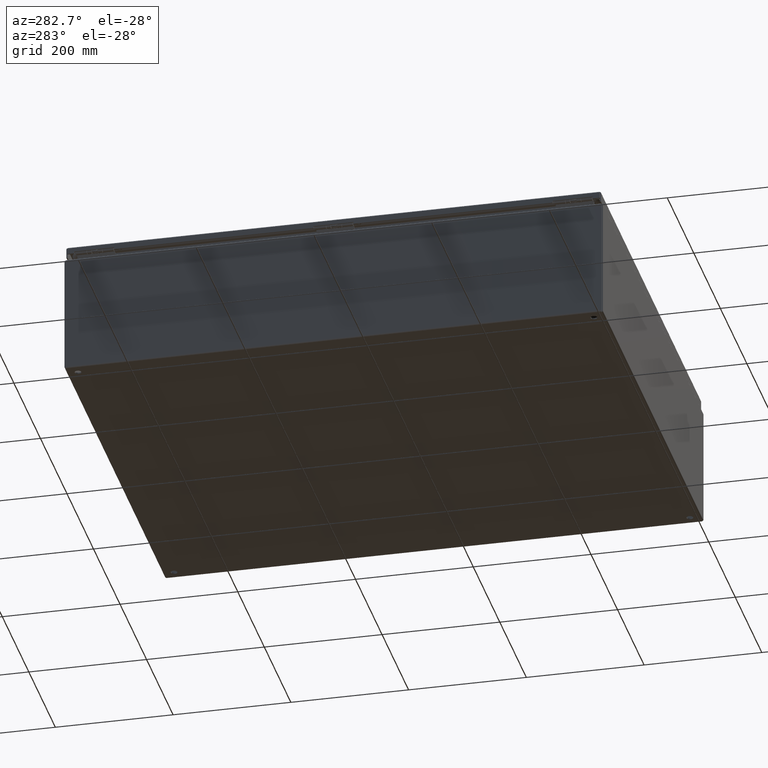
[diagram: clean part render]
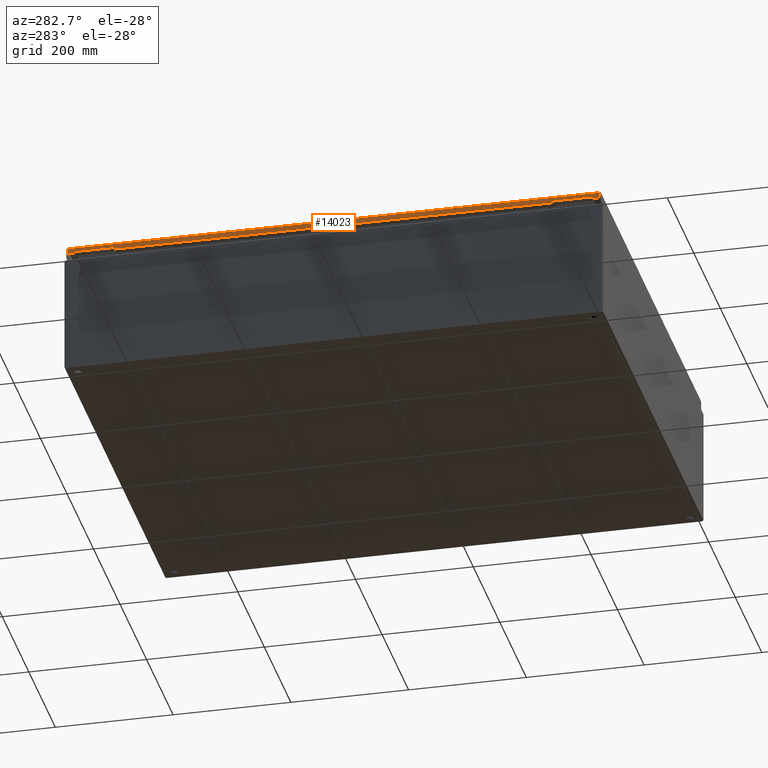
[diagram: same view with one face highlighted and labeled with its STEP entity id]
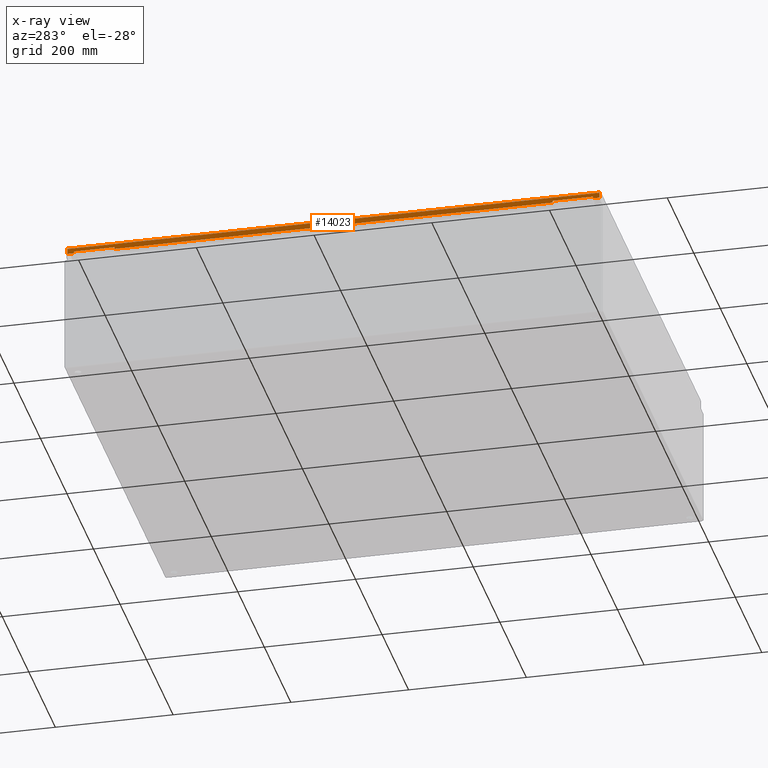
[diagram: x-ray of the same camera — body ghosted, the highlighted face saturated]
A machine part, auxiliary view. The second image highlights one B-rep face of the part: STEP entity #14023.
The next image is the same camera in x-ray: the body ghosted, the highlighted face saturated — about 0% of this face is hidden behind the body in this view.
In plain terms, the highlighted planar face has unit normal (1, -0, 0).
Its self-contained STEP definition (entity closure, byte-faithful):
#1354=PLANE('',#14939);
#1865=FACE_OUTER_BOUND('',#2789,.T.);
#2789=EDGE_LOOP('',(#10214,#10215,#10216,#10217,#10218,#10219,#10220,#10221,
#10222,#10223,#10224,#10225,#10226,#10227,#10228,#10229));
#4166=LINE('',#22749,#5247);
#4169=LINE('',#22755,#5250);
#4172=LINE('',#22761,#5253);
#4187=LINE('',#22791,#5268);
#4190=LINE('',#22797,#5271);
#4192=LINE('',#22801,#5273);
#4194=LINE('',#22805,#5275);
#4196=LINE('',#22809,#5277);
#4198=LINE('',#22812,#5279);
#4199=LINE('',#22815,#5280);
#4201=LINE('',#22819,#5282);
#4203=LINE('',#22823,#5284);
#4205=LINE('',#22827,#5286);
#4207=LINE('',#22831,#5288);
#4208=LINE('',#22833,#5289);
#4209=LINE('',#22834,#5290);
#5247=VECTOR('',#16796,0.125000000000004);
#5250=VECTOR('',#16801,2.687);
#5253=VECTOR('',#16806,0.125000000000005);
#5268=VECTOR('',#16825,13.3124999999999);
#5271=VECTOR('',#16830,0.457292893218817);
#5273=VECTOR('',#16834,0.125);
#5275=VECTOR('',#16838,2.687);
#5277=VECTOR('',#16842,0.125000000000001);
#5279=VECTOR('',#16846,13.3125);
#5280=VECTOR('',#16849,0.125000000000005);
#5282=VECTOR('',#16853,2.687);
#5284=VECTOR('',#16857,0.125000000000006);
#5286=VECTOR('',#16861,0.45729289321889);
#5288=VECTOR('',#16865,0.374749999999993);
#5289=VECTOR('',#16866,35.6005857864376);
#5290=VECTOR('',#16867,0.374750000000018);
#6341=VERTEX_POINT('',#22746);
#6342=VERTEX_POINT('',#22748);
#6344=VERTEX_POINT('',#22754);
#6346=VERTEX_POINT('',#22760);
#6359=VERTEX_POINT('',#22790);
#6360=VERTEX_POINT('',#22794);
#6361=VERTEX_POINT('',#22796);
#6362=VERTEX_POINT('',#22800);
#6363=VERTEX_POINT('',#22804);
#6364=VERTEX_POINT('',#22808);
#6365=VERTEX_POINT('',#22814);
#6366=VERTEX_POINT('',#22818);
#6367=VERTEX_POINT('',#22822);
#6368=VERTEX_POINT('',#22826);
#6369=VERTEX_POINT('',#22830);
#6370=VERTEX_POINT('',#22832);
#7785=EDGE_CURVE('',#6342,#6341,#4166,.T.);
#7788=EDGE_CURVE('',#6344,#6342,#4169,.T.);
#7791=EDGE_CURVE('',#6346,#6344,#4172,.T.);
#7806=EDGE_CURVE('',#6359,#6346,#4187,.T.);
#7809=EDGE_CURVE('',#6361,#6360,#4190,.T.);
#7811=EDGE_CURVE('',#6362,#6361,#4192,.T.);
#7813=EDGE_CURVE('',#6363,#6362,#4194,.T.);
#7815=EDGE_CURVE('',#6364,#6363,#4196,.T.);
#7817=EDGE_CURVE('',#6341,#6364,#4198,.T.);
#7818=EDGE_CURVE('',#6365,#6359,#4199,.T.);
#7820=EDGE_CURVE('',#6366,#6365,#4201,.T.);
#7822=EDGE_CURVE('',#6367,#6366,#4203,.T.);
#7824=EDGE_CURVE('',#6368,#6367,#4205,.T.);
#7826=EDGE_CURVE('',#6369,#6360,#4207,.T.);
#7827=EDGE_CURVE('',#6369,#6370,#4208,.T.);
#7828=EDGE_CURVE('',#6368,#6370,#4209,.T.);
#10214=ORIENTED_EDGE('',*,*,#7785,.T.);
#10215=ORIENTED_EDGE('',*,*,#7817,.T.);
#10216=ORIENTED_EDGE('',*,*,#7815,.T.);
#10217=ORIENTED_EDGE('',*,*,#7813,.T.);
#10218=ORIENTED_EDGE('',*,*,#7811,.T.);
#10219=ORIENTED_EDGE('',*,*,#7809,.T.);
#10220=ORIENTED_EDGE('',*,*,#7826,.F.);
#10221=ORIENTED_EDGE('',*,*,#7827,.T.);
#10222=ORIENTED_EDGE('',*,*,#7828,.F.);
#10223=ORIENTED_EDGE('',*,*,#7824,.T.);
#10224=ORIENTED_EDGE('',*,*,#7822,.T.);
#10225=ORIENTED_EDGE('',*,*,#7820,.T.);
#10226=ORIENTED_EDGE('',*,*,#7818,.T.);
#10227=ORIENTED_EDGE('',*,*,#7806,.T.);
#10228=ORIENTED_EDGE('',*,*,#7791,.T.);
#10229=ORIENTED_EDGE('',*,*,#7788,.T.);
#14023=ADVANCED_FACE('',(#1865),#1354,.F.);
#14939=AXIS2_PLACEMENT_3D('',#22829,#16863,#16864);
#16796=DIRECTION('',(-4.46430673630731E-14,1.57155410997628E-16,1.));
#16801=DIRECTION('',(4.20268090083323E-16,-1.,1.24621307611991E-16));
#16806=DIRECTION('',(4.46430673630731E-14,-1.57155410997628E-16,-1.));
#16825=DIRECTION('',(4.20268090083348E-16,-1.,-4.333532164538E-16));
#16830=DIRECTION('',(4.20268090083347E-16,-1.,-4.16344442773922E-16));
#16834=DIRECTION('',(-4.46430673630731E-14,1.57155410997628E-16,1.));
#16838=DIRECTION('',(4.20268090083329E-16,-1.,-5.51510593063111E-18));
#16842=DIRECTION('',(4.46430673630731E-14,-2.95456775650982E-15,-1.));
#16846=DIRECTION('',(4.20268090083348E-16,-1.,-4.333532164538E-16));
#16849=DIRECTION('',(-4.46430673630731E-14,1.57155410997628E-16,1.));
#16853=DIRECTION('',(4.20268090083329E-16,-1.,-5.51510593063123E-18));
#16857=DIRECTION('',(4.46430673630731E-14,-1.57155410997628E-16,-1.));
#16861=DIRECTION('',(4.20268090083343E-16,-1.,-3.20761133811918E-16));
#16863=DIRECTION('center_axis',(-1.,-4.20268090083329E-16,-4.46430673630731E-14));
#16864=DIRECTION('ref_axis',(-4.51194637207664E-14,0.,1.));
#16865=DIRECTION('',(-5.14531160026499E-14,-8.06117237522722E-30,1.));
#16866=DIRECTION('',(-4.20268090083329E-16,1.,-1.35717625439474E-29));
#16867=DIRECTION('',(5.14531160026499E-14,8.06117237522722E-30,-1.));
#22746=CARTESIAN_POINT('',(29.875,16.5315,0.480000000000008));
#22748=CARTESIAN_POINT('',(29.875,16.5315,0.355000000000003));
#22749=CARTESIAN_POINT('',(29.875,16.5315,0.432298479416836));
#22754=CARTESIAN_POINT('',(29.875,19.2185,0.355000000000003));
#22755=CARTESIAN_POINT('',(29.875,17.20325,0.355000000000003));
#22760=CARTESIAN_POINT('',(29.875,19.2185,0.480000000000008));
#22761=CARTESIAN_POINT('',(29.875,19.2185,0.369798479416833));
#22790=CARTESIAN_POINT('',(29.875,32.5309999999999,0.480000000000019));
#22791=CARTESIAN_POINT('',(29.875,10.547,0.480000000000009));
#22794=CARTESIAN_POINT('',(29.875,0.0747071067811785,0.480000000000005));
#22796=CARTESIAN_POINT('',(29.875,0.531999999999996,0.480000000000006));
#22797=CARTESIAN_POINT('',(29.875,8.97485355339059,0.480000000000009));
#22800=CARTESIAN_POINT('',(29.875,0.531999999999996,0.355000000000005));
#22801=CARTESIAN_POINT('',(29.875,0.531999999999995,0.432298479416836));
#22804=CARTESIAN_POINT('',(29.875,3.219,0.355000000000006));
#22805=CARTESIAN_POINT('',(29.875,9.2035,0.355000000000006));
#22808=CARTESIAN_POINT('',(29.875,3.219,0.480000000000006));
#22809=CARTESIAN_POINT('',(29.875,3.219,0.369798479416856));
#22812=CARTESIAN_POINT('',(29.875,10.547,0.480000000000009));
#22814=CARTESIAN_POINT('',(29.875,32.5309999999999,0.355000000000013));
#22815=CARTESIAN_POINT('',(29.875,32.5309999999999,0.43229847941684));
#22818=CARTESIAN_POINT('',(29.875,35.2179999999999,0.355000000000013));
#22819=CARTESIAN_POINT('',(29.875,25.203,0.355000000000013));
#22822=CARTESIAN_POINT('',(29.875,35.2179999999999,0.480000000000019));
#22823=CARTESIAN_POINT('',(29.875,35.2179999999999,0.369798479416837));
#22826=CARTESIAN_POINT('',(29.875,35.6752928932188,0.480000000000019));
#22827=CARTESIAN_POINT('',(29.875,26.5465,0.480000000000016));
#22829=CARTESIAN_POINT('Origin',(29.875,17.875,0.384596958833663));
#22830=CARTESIAN_POINT('',(29.875,0.0747071067811864,0.105250000000007));
#22831=CARTESIAN_POINT('',(29.875,0.0747071067811917,0.105250000000012));
#22832=CARTESIAN_POINT('',(29.875,35.6752928932188,0.105250000000001));
#22833=CARTESIAN_POINT('',(29.875,17.875,0.105250000000007));
#22834=CARTESIAN_POINT('',(29.875,35.6752928932188,0.105250000000001));